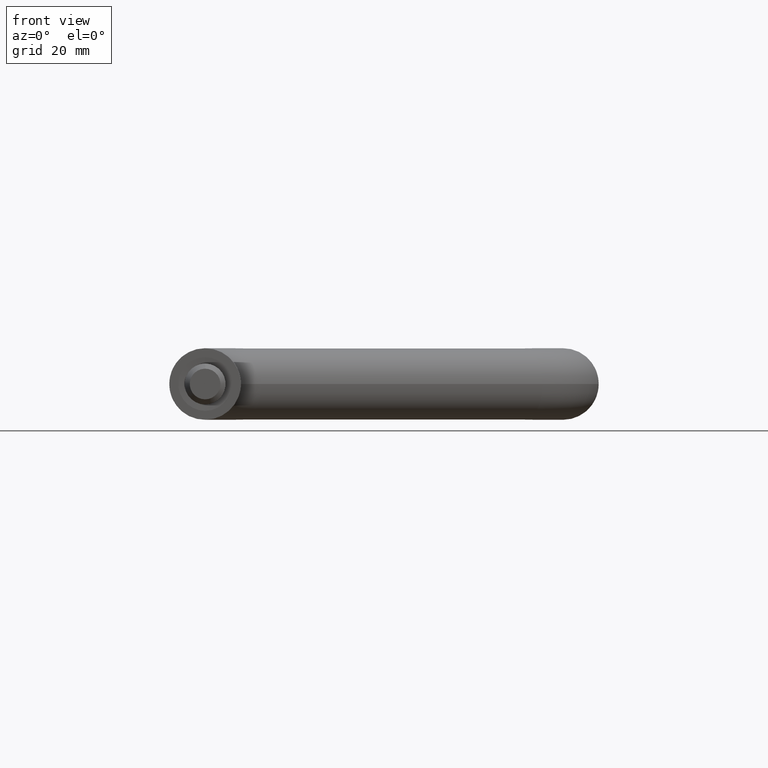
[diagram: clean part render]
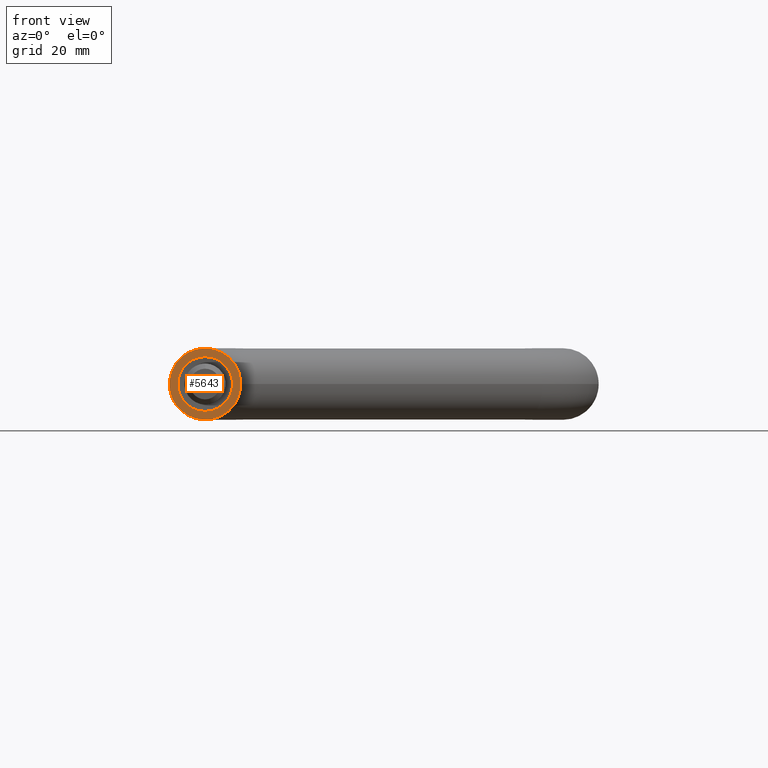
[diagram: same view with one face highlighted and labeled with its STEP entity id]
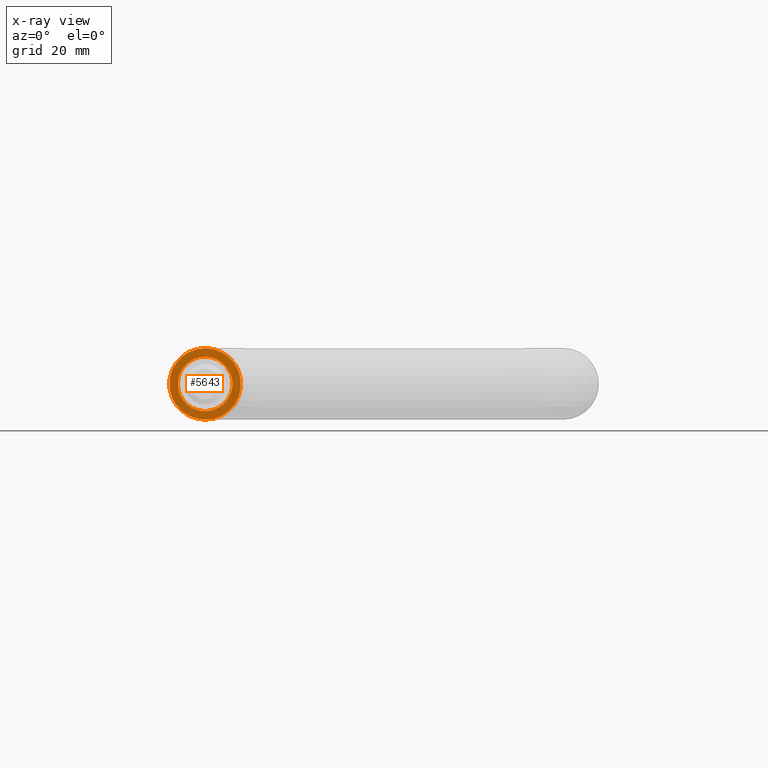
[diagram: x-ray of the same camera — body ghosted, the highlighted face saturated]
A machine part, front view. The second image highlights one B-rep face of the part: STEP entity #5643.
The next image is the same camera in x-ray: the body ghosted, the highlighted face saturated — about 0% of this face is hidden behind the body in this view.
In plain terms, the highlighted planar face has unit normal (0, 1, 0).
Its self-contained STEP definition (entity closure, byte-faithful):
#1659 = ORIENTED_EDGE ( 'NONE', *, *, #2590, .F. ) ;
#1895 = DIRECTION ( 'NONE',  ( 0.0000000000000000000, -0.0000000000000000000, 1.000000000000000000 ) ) ;
#1932 = DIRECTION ( 'NONE',  ( 0.0000000000000000000, -1.000000000000000000, 0.0000000000000000000 ) ) ;
#2082 = DIRECTION ( 'NONE',  ( 0.0000000000000000000, 1.000000000000000000, 0.0000000000000000000 ) ) ;
#2088 = CARTESIAN_POINT ( 'NONE',  ( 0.0000000000000000000, 0.0000000000000000000, 0.0000000000000000000 ) ) ;
#2097 = CARTESIAN_POINT ( 'NONE',  ( 6.551860375438339700E-016, 0.0000000000000000000, 5.349999999999999600 ) ) ;
#2145 = FACE_OUTER_BOUND ( 'NONE', #15848, .T. ) ;
#2590 = EDGE_CURVE ( 'NONE', #9690, #2633, #13563, .T. ) ;
#2633 = VERTEX_POINT ( 'NONE', #7101 ) ;
#2900 = VERTEX_POINT ( 'NONE', #2097 ) ;
#3944 = EDGE_CURVE ( 'NONE', #2633, #9690, #8148, .T. ) ;
#4035 = AXIS2_PLACEMENT_3D ( 'NONE', #4639, #1932, #5662 ) ;
#4159 = AXIS2_PLACEMENT_3D ( 'NONE', #14413, #2082, #9395 ) ;
#4456 = FACE_BOUND ( 'NONE', #8646, .T. ) ;
#4484 = CARTESIAN_POINT ( 'NONE',  ( 0.0000000000000000000, 0.0000000000000000000, 0.0000000000000000000 ) ) ;
#4495 = PLANE ( 'NONE',  #15581 ) ;
#4639 = CARTESIAN_POINT ( 'NONE',  ( 0.0000000000000000000, 0.0000000000000000000, 0.0000000000000000000 ) ) ;
#5643 = ADVANCED_FACE ( 'NONE', ( #4456, #2145 ), #4495, .F. ) ;
#5662 = DIRECTION ( 'NONE',  ( 0.0000000000000000000, 0.0000000000000000000, -1.000000000000000000 ) ) ;
#7101 = CARTESIAN_POINT ( 'NONE',  ( 8.572527594031473200E-016, 0.0000000000000000000, 7.000000000000000000 ) ) ;
#7118 = CIRCLE ( 'NONE', #4035, 5.349999999999999600 ) ;
#8148 = CIRCLE ( 'NONE', #10154, 7.000000000000000000 ) ;
#8646 = EDGE_LOOP ( 'NONE', ( #15259, #9309 ) ) ;
#9309 = ORIENTED_EDGE ( 'NONE', *, *, #14753, .F. ) ;
#9395 = DIRECTION ( 'NONE',  ( 0.0000000000000000000, 0.0000000000000000000, 1.000000000000000000 ) ) ;
#9690 = VERTEX_POINT ( 'NONE', #10678 ) ;
#10154 = AXIS2_PLACEMENT_3D ( 'NONE', #2088, #10701, #10638 ) ;
#10617 = DIRECTION ( 'NONE',  ( 0.0000000000000000000, -1.000000000000000000, 0.0000000000000000000 ) ) ;
#10638 = DIRECTION ( 'NONE',  ( 0.0000000000000000000, 0.0000000000000000000, 1.000000000000000000 ) ) ;
#10678 = CARTESIAN_POINT ( 'NONE',  ( 0.0000000000000000000, 0.0000000000000000000, -7.000000000000000000 ) ) ;
#10688 = CARTESIAN_POINT ( 'NONE',  ( 0.0000000000000000000, 0.0000000000000000000, -5.349999999999999600 ) ) ;
#10701 = DIRECTION ( 'NONE',  ( 0.0000000000000000000, 1.000000000000000000, 0.0000000000000000000 ) ) ;
#11561 = CIRCLE ( 'NONE', #11578, 5.349999999999999600 ) ;
#11578 = AXIS2_PLACEMENT_3D ( 'NONE', #4484, #10617, #15599 ) ;
#13486 = VERTEX_POINT ( 'NONE', #10688 ) ;
#13563 = CIRCLE ( 'NONE', #4159, 7.000000000000000000 ) ;
#13738 = ORIENTED_EDGE ( 'NONE', *, *, #3944, .F. ) ;
#14410 = CARTESIAN_POINT ( 'NONE',  ( 0.0000000000000000000, 0.0000000000000000000, 0.0000000000000000000 ) ) ;
#14413 = CARTESIAN_POINT ( 'NONE',  ( 0.0000000000000000000, 0.0000000000000000000, 0.0000000000000000000 ) ) ;
#14753 = EDGE_CURVE ( 'NONE', #2900, #13486, #11561, .T. ) ;
#15259 = ORIENTED_EDGE ( 'NONE', *, *, #16029, .F. ) ;
#15581 = AXIS2_PLACEMENT_3D ( 'NONE', #14410, #15641, #1895 ) ;
#15599 = DIRECTION ( 'NONE',  ( 0.0000000000000000000, 0.0000000000000000000, -1.000000000000000000 ) ) ;
#15641 = DIRECTION ( 'NONE',  ( 0.0000000000000000000, 1.000000000000000000, 0.0000000000000000000 ) ) ;
#15848 = EDGE_LOOP ( 'NONE', ( #1659, #13738 ) ) ;
#16029 = EDGE_CURVE ( 'NONE', #13486, #2900, #7118, .T. ) ;